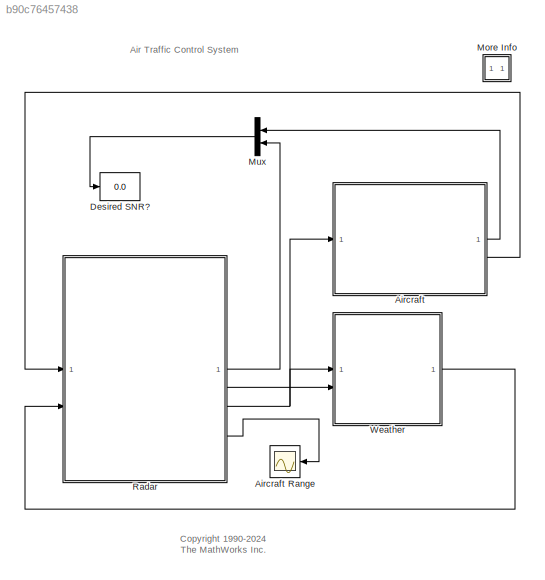
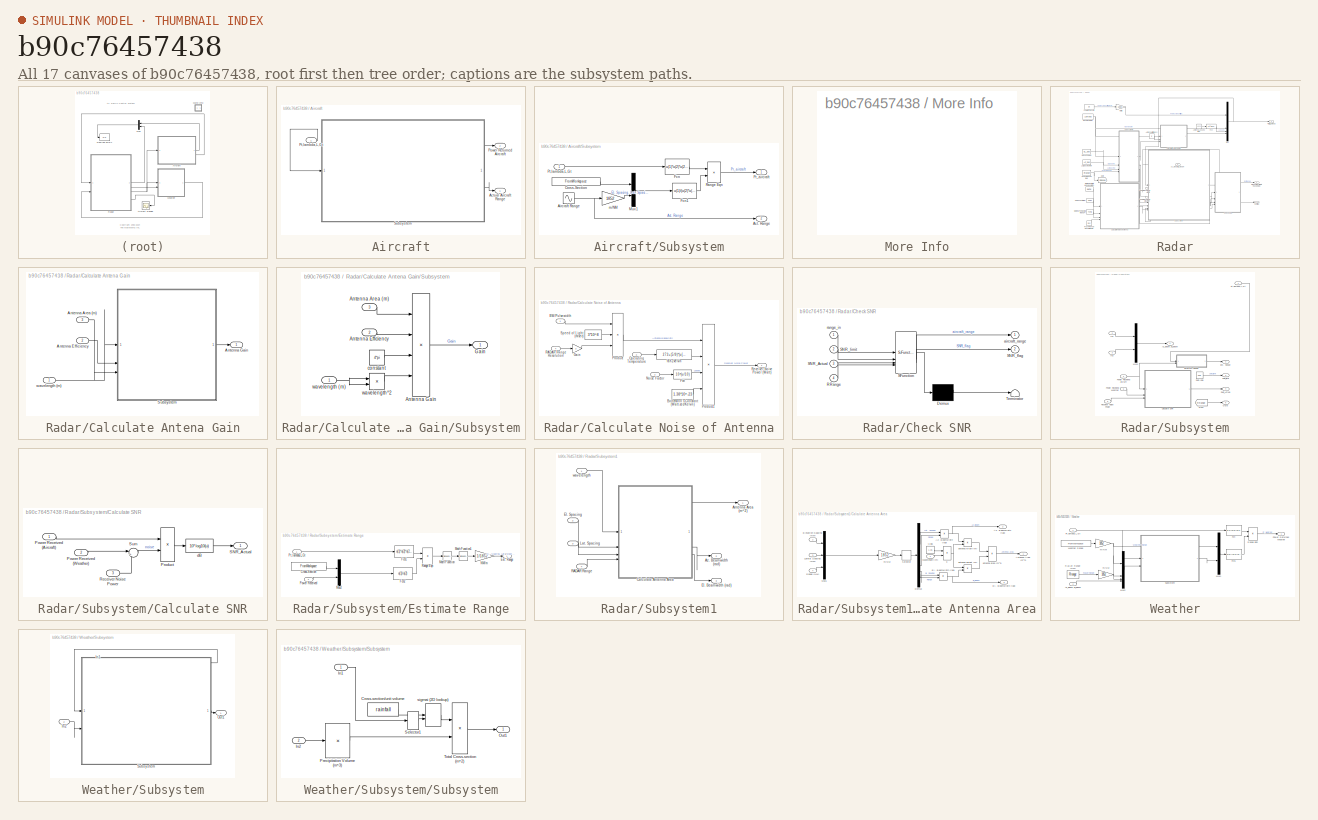
[diagram: thumbnail index - all 17 canvases of the model, root first then tree order]
MODEL slx_b90c76457438
KIND model
CONFIG AbsTol = auto
CONFIG EnableMultiTasking = on
CONFIG FixedStep = auto
CONFIG InitFcn = aero_init_atc
CONFIG MaxStep = 0.25
CONFIG MinStep = auto
CONFIG PreLoadFcn = aero_atcgui;
CONFIG RelTol = 1e-3
CONFIG SampleTimeConstraint = Unconstrained
CONFIG SolverName = ode45
CONFIG StartTime = 0.0
CONFIG StopTime = 10000
BLOCK [SubSystem] Aircraft
BLOCK [Scope] Aircraft Range
  ActiveDisplayYMaximum = 65
  ActiveDisplayYMinimum = 0
  DataLoggingDecimation = 1
  DataLoggingSaveFormat = Structure With Time
  Floating = off
  GraphicalSettings = {"GraphicalSettings":{"LegacySettings":true,"Style":{"AxesScalingProperties":{"ScaleAxesLimitsAtStop":false},"Style":{"AxesColor":"[0 0 0]","BackgroundColor":"[0.156862745098039 0.156862745098039 0.156862745098039]","ColorOrder":"[1 1 0.0666666666666667;0.0745098039215686 0.623529411764706 1;1 0.411764705882353 0.16078431372549;0.392156862745098 0.831372549019608 0.0745098039215686;0.7176470588235...<+612ch>
  MultipleDisplayCache = [{"MaxYLimMag":10,"MaxYLimReal":65,"MinYLimMag":0,"MinYLimReal":0,"PlotAsMagnitudePhase":false,"ShowGrid":true,"ShowLegend":false,"Title":"%<SignalLabel>","YLabel":""}]
  NumInputPorts = 1
  TimeSpan = 10300
  WasSavedAsWebScope = on
  WindowPosition = [109 1026 315 174]
BLOCK [Outport] Aircraft/Actual Aircraft Range
  VectorParamsAs1DForOutWhenUnconnected = off
BLOCK [Outport] Aircraft/Power Returned Aircraft
  Port = 2
  VectorParamsAs1DForOutWhenUnconnected = off
BLOCK [Inport] Aircraft/Pt,lambda,L,Gt
BLOCK [SubSystem] Aircraft/Subsystem
BLOCK [Outport] Aircraft/Subsystem/Act. Range
  Port = 2
BLOCK [Sin] Aircraft/Subsystem/Aircraft Range
  Amplitude = 25
  Bias = 35
  Frequency = 0.0025
  SampleTime = 0
BLOCK [FromWorkspace] Aircraft/Subsystem/Cross-Section
  Interpolate = off
  OutputAfterFinalValue = Holding final value
  VariableName = [T_xsection,U_xsection]
  ZeroCross = off
BLOCK [Fcn] Aircraft/Subsystem/Fcn
  Expr = u(1)*u(2)*u(2)*u(4)*u(4)/(64*pi*pi*pi*u(3))
BLOCK [Fcn] Aircraft/Subsystem/Fcn1
  Expr = u(1)/(u(2)*u(2)*u(2)*u(2))
BLOCK [Mux] Aircraft/Subsystem/Mux1
  DisplayOption = bar
  Inputs = 2
BLOCK [Outport] Aircraft/Subsystem/Pr_aircraft
BLOCK [Inport] Aircraft/Subsystem/Pt,lambda,L,Gt
BLOCK [Product] Aircraft/Subsystem/Range Eqn
  InputSameDT = on
  OutDataTypeStr = Inherit: Same as first input
  RndMeth = Zero
  SaturateOnIntegerOverflow = on
BLOCK [Gain] Aircraft/Subsystem/m//NM
  Gain = 1852
  OutDataTypeStr = Inherit: Same as input
  ParamDataTypeStr = Inherit: Same as input
  SaturateOnIntegerOverflow = on
BLOCK [Display] Desired SNR?
  Decimation = 1
BLOCK [SubSystem] More Info
  OpenFcn = showExample('simulink_aerospace/AirTrafficControlRadarDesignExample')
BLOCK [Mux] Mux
  DisplayOption = bar
  Inputs = 2
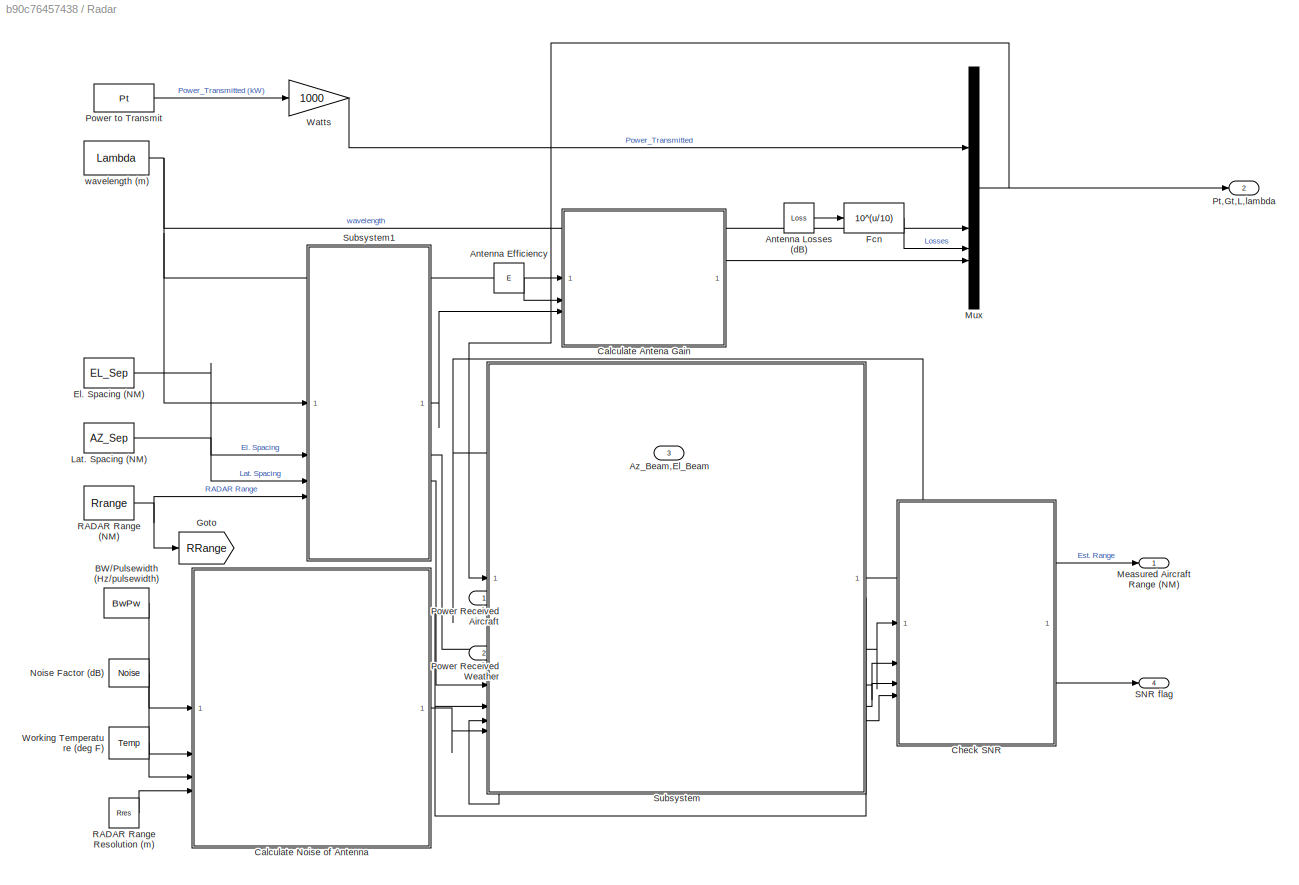
BLOCK [SubSystem] Radar
BLOCK [Constant] Radar/Antenna Efficiency
  Value = E
BLOCK [Constant] Radar/Antenna Losses (dB)
  Value = Loss
BLOCK [Outport] Radar/Az_Beam,El_Beam
  Port = 3
  VectorParamsAs1DForOutWhenUnconnected = off
BLOCK [Constant] Radar/BW//Pulsewidth (Hz//pulsewidth)
  Value = BwPw
BLOCK [SubSystem] Radar/Calculate Antena Gain
BLOCK [Inport] Radar/Calculate Antena Gain/Antenna Area (m)
  Port = 3
BLOCK [Inport] Radar/Calculate Antena Gain/Antenna Efficiency
  Port = 2
BLOCK [Outport] Radar/Calculate Antena Gain/Antenna Gain 
  VectorParamsAs1DForOutWhenUnconnected = off
BLOCK [SubSystem] Radar/Calculate Antena Gain/Subsystem
BLOCK [Inport] Radar/Calculate Antena Gain/Subsystem/Antenna Area (m)
  Port = 3
BLOCK [Inport] Radar/Calculate Antena Gain/Subsystem/Antenna Efficiency
  Port = 2
BLOCK [Product] Radar/Calculate Antena Gain/Subsystem/Antenna Gain
  InputSameDT = on
  Inputs = ***/
  OutDataTypeStr = Inherit: Same as first input
  RndMeth = Zero
  SaturateOnIntegerOverflow = on
BLOCK [Outport] Radar/Calculate Antena Gain/Subsystem/Gain
BLOCK [Constant] Radar/Calculate Antena Gain/Subsystem/constant
  Value = 4*pi
BLOCK [Inport] Radar/Calculate Antena Gain/Subsystem/wavelength (m)
BLOCK [Product] Radar/Calculate Antena Gain/Subsystem/wavelength^2
  InputSameDT = on
  OutDataTypeStr = Inherit: Same as first input
  RndMeth = Zero
  SaturateOnIntegerOverflow = on
BLOCK [Inport] Radar/Calculate Antena Gain/wavelength (m)
BLOCK [SubSystem] Radar/Calculate Noise of Antenna
BLOCK [Inport] Radar/Calculate Noise of Antenna/BW//Pulsewidth
BLOCK [Constant] Radar/Calculate Noise of Antenna/Boltzmann's Constant (Watt-sec//Kelvin)
  Value = 1.38*10^-23
BLOCK [Fcn] Radar/Calculate Noise of Antenna/Fcn
  Expr = 10^(u/10)
BLOCK [Gain] Radar/Calculate Noise of Antenna/Gain
  Gain = 2
  OutDataTypeStr = Inherit: Same as input
  ParamDataTypeStr = Inherit: Same as input
  SaturateOnIntegerOverflow = on
BLOCK [Inport] Radar/Calculate Noise of Antenna/Noise Factor
  Port = 2
BLOCK [Inport] Radar/Calculate Noise of Antenna/Operating Temperature
  Port = 3
BLOCK [Product] Radar/Calculate Noise of Antenna/Product
  InputSameDT = on
  Inputs = **/
  OutDataTypeStr = Inherit: Same as first input
  RndMeth = Zero
  SaturateOnIntegerOverflow = on
BLOCK [Product] Radar/Calculate Noise of Antenna/Product1
  InputSameDT = on
  Inputs = 4
  OutDataTypeStr = Inherit: Same as first input
  RndMeth = Zero
  SaturateOnIntegerOverflow = on
BLOCK [Inport] Radar/Calculate Noise of Antenna/RADAR Range Resolution
  Port = 4
BLOCK [Outport] Radar/Calculate Noise of Antenna/Receiver Noise Power (Watt)
  VectorParamsAs1DForOutWhenUnconnected = off
BLOCK [Constant] Radar/Calculate Noise of Antenna/Speed of Light (m//sec)
  Value = 3*10^8
BLOCK [Fcn] Radar/Calculate Noise of Antenna/fah2kelvin
  Expr = 273+(5/9)*(u[1]-32)
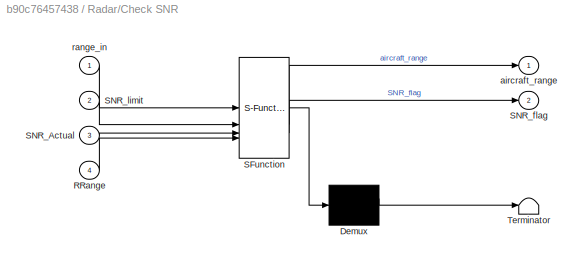
BLOCK [SubSystem] Radar/Check SNR
  ErrorFcn = Stateflow.Translate.translate
  PermitHierarchicalResolution = ExplicitOnly
  SFBlockType = Chart
  TreatAsAtomicUnit = on
BLOCK [Demux] Radar/Check SNR/ Demux 
  Outputs = 1
BLOCK [S-Function] Radar/Check SNR/ SFunction 
  EnableBusSupport = off
  FunctionName = sf_sfun
  PortCounts = [4 3]
  SFcnIsStateOwnerBlock = off
  SFunctionDeploymentMode = off
  Tag = Stateflow S-Function 1
BLOCK [Terminator] Radar/Check SNR/ Terminator 
BLOCK [Inport] Radar/Check SNR/RRange
  Port = 4
BLOCK [Inport] Radar/Check SNR/SNR_Actual
  Port = 3
BLOCK [Outport] Radar/Check SNR/SNR_flag
  Port = 2
  VectorParamsAs1DForOutWhenUnconnected = off
BLOCK [Inport] Radar/Check SNR/SNR_limit
  Port = 2
BLOCK [Outport] Radar/Check SNR/aircraft_range
  VectorParamsAs1DForOutWhenUnconnected = off
BLOCK [Inport] Radar/Check SNR/range_in
BLOCK [Constant] Radar/El. Spacing (NM)
  Value = EL_Sep
BLOCK [Fcn] Radar/Fcn
  Expr = 10^(u/10)
BLOCK [Goto] Radar/Goto
  GotoTag = RRange
BLOCK [Constant] Radar/Lat. Spacing (NM)
  Value = AZ_Sep
BLOCK [Outport] Radar/Measured Aircraft Range (NM)
  VectorParamsAs1DForOutWhenUnconnected = off
BLOCK [Mux] Radar/Mux
  DisplayOption = bar
BLOCK [Constant] Radar/Noise Factor (dB)
  Value = Noise
BLOCK [Inport] Radar/Power Received Aircraft
BLOCK [Inport] Radar/Power Received Weather
  Port = 2
BLOCK [Constant] Radar/Power to Transmit
  Value = Pt
BLOCK [Outport] Radar/Pt,Gt,L,lambda
  Port = 2
  VectorParamsAs1DForOutWhenUnconnected = off
BLOCK [Constant] Radar/RADAR Range (NM)
  Value = Rrange
BLOCK [Constant] Radar/RADAR Range Resolution (m)
  Value = Rres
BLOCK [Outport] Radar/SNR flag
  Port = 4
  VectorParamsAs1DForOutWhenUnconnected = off
BLOCK [SubSystem] Radar/Subsystem
BLOCK [Outport] Radar/Subsystem/Az_Beam,El_Beam
  VectorParamsAs1DForOutWhenUnconnected = off
BLOCK [SubSystem] Radar/Subsystem/Calculate SNR
BLOCK [Inport] Radar/Subsystem/Calculate SNR/Power Received (Aircraft)
BLOCK [Inport] Radar/Subsystem/Calculate SNR/Power Received (Weather)
  Port = 2
BLOCK [Product] Radar/Subsystem/Calculate SNR/Product
  InputSameDT = on
  Inputs = */
  OutDataTypeStr = Inherit: Same as first input
  RndMeth = Zero
  SaturateOnIntegerOverflow = on
BLOCK [Inport] Radar/Subsystem/Calculate SNR/Receiver Noise Power
  Port = 3
BLOCK [Outport] Radar/Subsystem/Calculate SNR/SNR_Actual
  VectorParamsAs1DForOutWhenUnconnected = off
BLOCK [Sum] Radar/Subsystem/Calculate SNR/Sum
  InputSameDT = on
  Inputs = |++
  OutDataTypeStr = Inherit: Same as first input
  SaturateOnIntegerOverflow = on
BLOCK [Fcn] Radar/Subsystem/Calculate SNR/dB
  Expr = 10*log10(u)
BLOCK [Outport] Radar/Subsystem/Est. Range
  Port = 2
BLOCK [SubSystem] Radar/Subsystem/Estimate Range
BLOCK [FromWorkspace] Radar/Subsystem/Estimate Range/Cross-Section
  VariableName = [T_xsection,U_xsection]
  ZeroCross = off
BLOCK [Outport] Radar/Subsystem/Estimate Range/Est. Range
  VectorParamsAs1DForOutWhenUnconnected = off
BLOCK [Fcn] Radar/Subsystem/Estimate Range/Fcn1
  Expr = u(1)*u(2)*u(2)*u(4)*u(4)/(64*pi*pi*pi*u(3))
BLOCK [Fcn] Radar/Subsystem/Estimate Range/Fcn2
  Expr = u(1)/u(2)
BLOCK [Sqrt] Radar/Subsystem/Estimate Range/Math Function
  AlgorithmType = Newton-Raphson
  Operator = signedSqrt
BLOCK [Sqrt] Radar/Subsystem/Estimate Range/Math Function1
  AlgorithmType = Newton-Raphson
  Operator = signedSqrt
BLOCK [Mux] Radar/Subsystem/Estimate Range/Mux2
  DisplayOption = bar
  Inputs = 2
BLOCK [Gain] Radar/Subsystem/Estimate Range/NM//m
  Gain = 1/1852
  OutDataTypeStr = Inherit: Same as input
  ParamDataTypeStr = Inherit: Same as input
  SaturateOnIntegerOverflow = on
BLOCK [Inport] Radar/Subsystem/Estimate Range/Power Received
  Port = 2
BLOCK [Inport] Radar/Subsystem/Estimate Range/Pt,lambda,L,Gt
BLOCK [Product] Radar/Subsystem/Estimate Range/Range Eqn
  InputSameDT = on
  OutDataTypeStr = Inherit: Same as first input
  RndMeth = Zero
  SaturateOnIntegerOverflow = on
BLOCK [From] Radar/Subsystem/From
  GotoTag = RRange
BLOCK [Inport] Radar/Subsystem/In2
  Port = 2
BLOCK [Inport] Radar/Subsystem/In3
  Port = 3
BLOCK [Mux] Radar/Subsystem/Mux1
  DisplayOption = bar
  Inputs = 2
BLOCK [Outport] Radar/Subsystem/Out5
  Port = 5
BLOCK [Inport] Radar/Subsystem/Power Received Aircraft
  Port = 4
BLOCK [Inport] Radar/Subsystem/Power Received Weather
  Port = 5
BLOCK [Inport] Radar/Subsystem/Pt,lambda,L,Gt
BLOCK [Inport] Radar/Subsystem/Receiver Noise Power
  Port = 6
BLOCK [Constant] Radar/Subsystem/SNR (dB)
  Value = SNR
BLOCK [Outport] Radar/Subsystem/SNR_Actual
  Port = 4
BLOCK [Outport] Radar/Subsystem/SNR_limit
  Port = 3
BLOCK [SubSystem] Radar/Subsystem1
BLOCK [Outport] Radar/Subsystem1/Antenna Area (m^2)
BLOCK [Outport] Radar/Subsystem1/Az. Beamwidth (rad) 
  Port = 2
BLOCK [SubSystem] Radar/Subsystem1/Calculate Antenna Area
BLOCK [Constant] Radar/Subsystem1/Calculate Antenna Area/-3 dB  
  NameLocation = top
  Value = 1.25
BLOCK [Outport] Radar/Subsystem1/Calculate Antenna Area/Antenna Area (m^2)
  VectorParamsAs1DForOutWhenUnconnected = off
BLOCK [Product] Radar/Subsystem1/Calculate Antenna Area/Az. Beamwidth (rad)
  InputSameDT = on
  Inputs = */
  NameLocation = top
  OutDataTypeStr = Inherit: Same as first input
  RndMeth = Zero
  SaturateOnIntegerOverflow = on
BLOCK [Outport] Radar/Subsystem1/Calculate Antenna Area/Az. Beamwidth (rad) 
  Port = 2
  VectorParamsAs1DForOutWhenUnconnected = off
BLOCK [Demux] Radar/Subsystem1/Calculate Antenna Area/Demux
  DisplayOption = none
BLOCK [Product] Radar/Subsystem1/Calculate Antenna Area/El. Beamwidth (rad)
  InputSameDT = on
  Inputs = */
  OutDataTypeStr = Inherit: Same as first input
  RndMeth = Zero
  SaturateOnIntegerOverflow = on
BLOCK [Outport] Radar/Subsystem1/Calculate Antenna Area/El. Beamwidth (rad) 
  Port = 3
  VectorParamsAs1DForOutWhenUnconnected = off
BLOCK [Inport] Radar/Subsystem1/Calculate Antenna Area/Elevation Spacing (NM)
  Port = 2
BLOCK [Inport] Radar/Subsystem1/Calculate Antenna Area/Lateral Spacing (NM)
  Port = 3
BLOCK [Mux] Radar/Subsystem1/Calculate Antenna Area/Mux1
  DisplayOption = bar
  Inputs = 3
BLOCK [Inport] Radar/Subsystem1/Calculate Antenna Area/Range (NM)
  Port = 4
BLOCK [Selector] Radar/Subsystem1/Calculate Antenna Area/Selector
  IndexOptions = Index vector (dialog)
  Indices = [1 3 2 3]
  InputPortWidth = 3
  OutputSizes = 1
BLOCK [Inport] Radar/Subsystem1/Calculate Antenna Area/Wavelength (m)
BLOCK [Product] Radar/Subsystem1/Calculate Antenna Area/antenna area (m^2)
  InputSameDT = on
  OutDataTypeStr = Inherit: Same as first input
  RndMeth = Zero
  SaturateOnIntegerOverflow = on
BLOCK [Product] Radar/Subsystem1/Calculate Antenna Area/antenna height (m)
  InputSameDT = on
  Inputs = */
  NameLocation = top
  OutDataTypeStr = Inherit: Same as first input
  RndMeth = Zero
  SaturateOnIntegerOverflow = on
BLOCK [Product] Radar/Subsystem1/Calculate Antenna Area/antenna width (m)
  InputSameDT = on
  Inputs = /*
  OutDataTypeStr = Inherit: Same as first input
  RndMeth = Zero
  SaturateOnIntegerOverflow = on
BLOCK [Product] Radar/Subsystem1/Calculate Antenna Area/k
  InputSameDT = on
  Inputs = **
  OutDataTypeStr = Inherit: Same as first input
  RndMeth = Zero
  SaturateOnIntegerOverflow = on
BLOCK [Gain] Radar/Subsystem1/Calculate Antenna Area/m//NM
  Gain = 1852
  OutDataTypeStr = Inherit: Same as input
  ParamDataTypeStr = Inherit: Same as input
  SaturateOnIntegerOverflow = on
BLOCK [Outport] Radar/Subsystem1/El. Beamwidth (rad) 
  Port = 3
BLOCK [Inport] Radar/Subsystem1/El. Spacing
  Port = 2
BLOCK [Inport] Radar/Subsystem1/Lat. Spacing
  Port = 3
BLOCK [Inport] Radar/Subsystem1/RADAR Range
  Port = 4
BLOCK [Inport] Radar/Subsystem1/wavelength
BLOCK [Gain] Radar/Watts
  Gain = 1000
  OutDataTypeStr = Inherit: Same as input
  ParamDataTypeStr = Inherit: Same as input
  SaturateOnIntegerOverflow = on
BLOCK [Constant] Radar/Working Temperature (deg F)
  Value = Temp
BLOCK [Constant] Radar/wavelength (m) 
  Value = Lambda
BLOCK [SubSystem] Weather
BLOCK [Inport] Weather/Az_Beam,El_Beam
  Port = 2
BLOCK [Fcn] Weather/Fcn
  Expr = u(1)*u(2)*u(2)*u(4)*u(4)/(64*pi*pi*pi)
BLOCK [Fcn] Weather/Fcn1
  Expr = u(2)/(u(1)*u(1)*u(1)*u(1))
BLOCK [Mux] Weather/Mux1
  DisplayOption = bar
  Inputs = 2
BLOCK [Mux] Weather/Mux2
  DisplayOption = bar
BLOCK [Outport] Weather/Power Returned Weather
  VectorParamsAs1DForOutWhenUnconnected = off
BLOCK [Inport] Weather/Pt,lambda,L,Gt
BLOCK [Constant] Weather/RADAR Range (NM)
  NameLocation = top
  Value = Rrange
BLOCK [Product] Weather/Range Eqn
  InputSameDT = on
  OutDataTypeStr = Inherit: Same as first input
  RndMeth = Zero
  SaturateOnIntegerOverflow = on
BLOCK [SubSystem] Weather/Subsystem
BLOCK [Inport] Weather/Subsystem/In1
BLOCK [Inport] Weather/Subsystem/In2
  Port = 2
BLOCK [Outport] Weather/Subsystem/Out1
BLOCK [SubSystem] Weather/Subsystem/Subsystem
BLOCK [Constant] Weather/Subsystem/Subsystem/Cross-section//unit volume
  NameLocation = top
  Value = rainfall
BLOCK [Inport] Weather/Subsystem/Subsystem/In1
BLOCK [Inport] Weather/Subsystem/Subsystem/In2
  Port = 2
BLOCK [Outport] Weather/Subsystem/Subsystem/Out1
BLOCK [Product] Weather/Subsystem/Subsystem/Precipitation Volume (m^3)
  InputSameDT = on
  Inputs = *
  OutDataTypeStr = Inherit: Same as first input
  RndMeth = Zero
  SaturateOnIntegerOverflow = on
BLOCK [Selector] Weather/Subsystem/Subsystem/Selector1
  IndexOptions = Index vector (dialog)
  Indices = 2
  InputPortWidth = 4
  OutputSizes = 1
BLOCK [Product] Weather/Subsystem/Subsystem/Total Cross-section (m^2)
  InputSameDT = on
  OutDataTypeStr = Inherit: Same as first input
  RndMeth = Zero
  SaturateOnIntegerOverflow = on
BLOCK [Lookup_n-D] Weather/Subsystem/Subsystem/sigmai (2D lookup)
  BreakpointsForDimension1 = rainfall_bp
  BreakpointsForDimension2 = lambda_bp
  InputPortMap = u0,u1
  SaturateOnIntegerOverflow = on
  Table = sigma_table
BLOCK [FromWorkspace] Weather/Weather Range
  Interpolate = off
  OutputAfterFinalValue = Holding final value
  VariableName = [T_Weather,R_Weather]
  ZeroCross = off
BLOCK [Gain] Weather/m//NM
  Gain = 1852
  NameLocation = top
  OutDataTypeStr = Inherit: Same as input
  ParamDataTypeStr = Inherit: Same as input
  SaturateOnIntegerOverflow = on
BLOCK [Gain] Weather/m//NM 
  Gain = 1852
  OutDataTypeStr = Inherit: Same as input
  ParamDataTypeStr = Inherit: Same as input
  SaturateOnIntegerOverflow = on
ANNOTATION (root): Air Traffic Control System
ANNOTATION (root): <copyright redacted>
LINE Aircraft/Pt,lambda,L,Gt:1 -> Aircraft/Subsystem:1
NET Aircraft/Subsystem/Aircraft Range:1 -> Aircraft/Subsystem/Act. Range:1, Aircraft/Subsystem/m//NM:1
LINE Aircraft/Subsystem/Cross-Section:1 -> Aircraft/Subsystem/Mux1:1
LINE Aircraft/Subsystem/Fcn1:1 -> Aircraft/Subsystem/Range Eqn:2
LINE Aircraft/Subsystem/Fcn:1 -> Aircraft/Subsystem/Range Eqn:1
LINE Aircraft/Subsystem/Mux1:1 -> Aircraft/Subsystem/Fcn1:1
LINE Aircraft/Subsystem/Pt,lambda,L,Gt:1 -> Aircraft/Subsystem/Fcn:1
LINE Aircraft/Subsystem/Range Eqn:1 -> Aircraft/Subsystem/Pr_aircraft:1
LINE Aircraft/Subsystem/m//NM:1 -> Aircraft/Subsystem/Mux1:2
LINE Aircraft/Subsystem:1 -> Aircraft/Power Returned Aircraft:1
LINE Aircraft/Subsystem:2 -> Aircraft/Actual Aircraft Range:1
LINE Aircraft:1 -> Mux:1
LINE Aircraft:2 -> Radar:1
LINE Mux:1 -> Desired SNR?:1
LINE Radar/Antenna Efficiency:1 -> Radar/Calculate Antena Gain:2
LINE Radar/Antenna Losses (dB):1 -> Radar/Fcn:1
LINE Radar/BW//Pulsewidth (Hz//pulsewidth):1 -> Radar/Calculate Noise of Antenna:1
LINE Radar/Calculate Antena Gain/Antenna Area (m):1 -> Radar/Calculate Antena Gain/Subsystem:3
LINE Radar/Calculate Antena Gain/Antenna Efficiency:1 -> Radar/Calculate Antena Gain/Subsystem:2
LINE Radar/Calculate Antena Gain/Subsystem/Antenna Area (m):1 -> Radar/Calculate Antena Gain/Subsystem/Antenna Gain:1
LINE Radar/Calculate Antena Gain/Subsystem/Antenna Efficiency:1 -> Radar/Calculate Antena Gain/Subsystem/Antenna Gain:2
LINE Radar/Calculate Antena Gain/Subsystem/Antenna Gain:1 -> Radar/Calculate Antena Gain/Subsystem/Gain:1
LINE Radar/Calculate Antena Gain/Subsystem/constant:1 -> Radar/Calculate Antena Gain/Subsystem/Antenna Gain:3
NET Radar/Calculate Antena Gain/Subsystem/wavelength (m):1 -> Radar/Calculate Antena Gain/Subsystem/wavelength^2:1, Radar/Calculate Antena Gain/Subsystem/wavelength^2:2
LINE Radar/Calculate Antena Gain/Subsystem/wavelength^2:1 -> Radar/Calculate Antena Gain/Subsystem/Antenna Gain:4
LINE Radar/Calculate Antena Gain/Subsystem:1 -> Radar/Calculate Antena Gain/Antenna Gain :1
LINE Radar/Calculate Antena Gain/wavelength (m):1 -> Radar/Calculate Antena Gain/Subsystem:1
LINE Radar/Calculate Antena Gain:1 -> Radar/Mux:4
LINE Radar/Calculate Noise of Antenna/BW//Pulsewidth:1 -> Radar/Calculate Noise of Antenna/Product:1
LINE Radar/Calculate Noise of Antenna/Boltzmann's Constant (Watt-sec//Kelvin):1 -> Radar/Calculate Noise of Antenna/Product1:4
LINE Radar/Calculate Noise of Antenna/Fcn:1 -> Radar/Calculate Noise of Antenna/Product1:3
LINE Radar/Calculate Noise of Antenna/Gain:1 -> Radar/Calculate Noise of Antenna/Product:3
LINE Radar/Calculate Noise of Antenna/Noise Factor:1 -> Radar/Calculate Noise of Antenna/Fcn:1
LINE Radar/Calculate Noise of Antenna/Operating Temperature:1 -> Radar/Calculate Noise of Antenna/fah2kelvin:1
LINE Radar/Calculate Noise of Antenna/Product1:1 -> Radar/Calculate Noise of Antenna/Receiver Noise Power (Watt):1
LINE Radar/Calculate Noise of Antenna/Product:1 -> Radar/Calculate Noise of Antenna/Product1:1
LINE Radar/Calculate Noise of Antenna/RADAR Range Resolution:1 -> Radar/Calculate Noise of Antenna/Gain:1
LINE Radar/Calculate Noise of Antenna/Speed of Light (m//sec):1 -> Radar/Calculate Noise of Antenna/Product:2
LINE Radar/Calculate Noise of Antenna/fah2kelvin:1 -> Radar/Calculate Noise of Antenna/Product1:2
LINE Radar/Calculate Noise of Antenna:1 -> Radar/Subsystem:6
LINE Radar/Check SNR:1 -> Radar/Measured Aircraft Range (NM):1
LINE Radar/Check SNR:2 -> Radar/SNR flag:1
LINE Radar/El. Spacing (NM):1 -> Radar/Subsystem1:2
LINE Radar/Fcn:1 -> Radar/Mux:3
LINE Radar/Lat. Spacing (NM):1 -> Radar/Subsystem1:3
NET Radar/Mux:1 -> Radar/Pt,Gt,L,lambda:1, Radar/Subsystem:1
LINE Radar/Noise Factor (dB):1 -> Radar/Calculate Noise of Antenna:2
LINE Radar/Power Received Aircraft:1 -> Radar/Subsystem:4
LINE Radar/Power Received Weather:1 -> Radar/Subsystem:5
LINE Radar/Power to Transmit:1 -> Radar/Watts:1
NET Radar/RADAR Range (NM):1 -> Radar/Goto:1, Radar/Subsystem1:4
LINE Radar/RADAR Range Resolution (m):1 -> Radar/Calculate Noise of Antenna:4
LINE Radar/Subsystem/Calculate SNR/Power Received (Aircraft):1 -> Radar/Subsystem/Calculate SNR/Product:1
LINE Radar/Subsystem/Calculate SNR/Power Received (Weather):1 -> Radar/Subsystem/Calculate SNR/Sum:1
LINE Radar/Subsystem/Calculate SNR/Product:1 -> Radar/Subsystem/Calculate SNR/dB:1
LINE Radar/Subsystem/Calculate SNR/Receiver Noise Power:1 -> Radar/Subsystem/Calculate SNR/Sum:2
LINE Radar/Subsystem/Calculate SNR/Sum:1 -> Radar/Subsystem/Calculate SNR/Product:2
LINE Radar/Subsystem/Calculate SNR/dB:1 -> Radar/Subsystem/Calculate SNR/SNR_Actual:1
LINE Radar/Subsystem/Calculate SNR:1 -> Radar/Subsystem/SNR_Actual:1
LINE Radar/Subsystem/Estimate Range/Cross-Section:1 -> Radar/Subsystem/Estimate Range/Mux2:1
LINE Radar/Subsystem/Estimate Range/Fcn1:1 -> Radar/Subsystem/Estimate Range/Range Eqn:1
LINE Radar/Subsystem/Estimate Range/Fcn2:1 -> Radar/Subsystem/Estimate Range/Range Eqn:2
LINE Radar/Subsystem/Estimate Range/Math Function1:1 -> Radar/Subsystem/Estimate Range/NM//m:1
LINE Radar/Subsystem/Estimate Range/Math Function:1 -> Radar/Subsystem/Estimate Range/Math Function1:1
LINE Radar/Subsystem/Estimate Range/Mux2:1 -> Radar/Subsystem/Estimate Range/Fcn2:1
LINE Radar/Subsystem/Estimate Range/NM//m:1 -> Radar/Subsystem/Estimate Range/Est. Range:1
LINE Radar/Subsystem/Estimate Range/Power Received:1 -> Radar/Subsystem/Estimate Range/Mux2:2
LINE Radar/Subsystem/Estimate Range/Pt,lambda,L,Gt:1 -> Radar/Subsystem/Estimate Range/Fcn1:1
LINE Radar/Subsystem/Estimate Range/Range Eqn:1 -> Radar/Subsystem/Estimate Range/Math Function:1
LINE Radar/Subsystem/Estimate Range:1 -> Radar/Subsystem/Est. Range:1
LINE Radar/Subsystem/From:1 -> Radar/Subsystem/Out5:1
LINE Radar/Subsystem/In2:1 -> Radar/Subsystem/Mux1:1
LINE Radar/Subsystem/In3:1 -> Radar/Subsystem/Mux1:2
LINE Radar/Subsystem/Mux1:1 -> Radar/Subsystem/Az_Beam,El_Beam:1
NET Radar/Subsystem/Power Received Aircraft:1 -> Radar/Subsystem/Calculate SNR:1, Radar/Subsystem/Estimate Range:2
LINE Radar/Subsystem/Power Received Weather:1 -> Radar/Subsystem/Calculate SNR:2
LINE Radar/Subsystem/Pt,lambda,L,Gt:1 -> Radar/Subsystem/Estimate Range:1
LINE Radar/Subsystem/Receiver Noise Power:1 -> Radar/Subsystem/Calculate SNR:3
LINE Radar/Subsystem/SNR (dB):1 -> Radar/Subsystem/SNR_limit:1
LINE Radar/Subsystem1/Calculate Antenna Area/-3 dB  :1 -> Radar/Subsystem1/Calculate Antenna Area/k:1
NET Radar/Subsystem1/Calculate Antenna Area/Az. Beamwidth (rad):1 -> Radar/Subsystem1/Calculate Antenna Area/Az. Beamwidth (rad) :1, Radar/Subsystem1/Calculate Antenna Area/antenna width (m):1
LINE Radar/Subsystem1/Calculate Antenna Area/Demux:1 -> Radar/Subsystem1/Calculate Antenna Area/Az. Beamwidth (rad):1
LINE Radar/Subsystem1/Calculate Antenna Area/Demux:2 -> Radar/Subsystem1/Calculate Antenna Area/Az. Beamwidth (rad):2
LINE Radar/Subsystem1/Calculate Antenna Area/Demux:3 -> Radar/Subsystem1/Calculate Antenna Area/El. Beamwidth (rad):1
LINE Radar/Subsystem1/Calculate Antenna Area/Demux:4 -> Radar/Subsystem1/Calculate Antenna Area/El. Beamwidth (rad):2
NET Radar/Subsystem1/Calculate Antenna Area/El. Beamwidth (rad):1 -> Radar/Subsystem1/Calculate Antenna Area/El. Beamwidth (rad) :1, Radar/Subsystem1/Calculate Antenna Area/antenna height (m):2
LINE Radar/Subsystem1/Calculate Antenna Area/Elevation Spacing (NM):1 -> Radar/Subsystem1/Calculate Antenna Area/Mux1:1
LINE Radar/Subsystem1/Calculate Antenna Area/Lateral Spacing (NM):1 -> Radar/Subsystem1/Calculate Antenna Area/Mux1:2
LINE Radar/Subsystem1/Calculate Antenna Area/Mux1:1 -> Radar/Subsystem1/Calculate Antenna Area/m//NM:1
LINE Radar/Subsystem1/Calculate Antenna Area/Range (NM):1 -> Radar/Subsystem1/Calculate Antenna Area/Mux1:3
LINE Radar/Subsystem1/Calculate Antenna Area/Selector:1 -> Radar/Subsystem1/Calculate Antenna Area/Demux:1
LINE Radar/Subsystem1/Calculate Antenna Area/Wavelength (m):1 -> Radar/Subsystem1/Calculate Antenna Area/k:2
LINE Radar/Subsystem1/Calculate Antenna Area/antenna area (m^2):1 -> Radar/Subsystem1/Calculate Antenna Area/Antenna Area (m^2):1
LINE Radar/Subsystem1/Calculate Antenna Area/antenna height (m):1 -> Radar/Subsystem1/Calculate Antenna Area/antenna area (m^2):2
LINE Radar/Subsystem1/Calculate Antenna Area/antenna width (m):1 -> Radar/Subsystem1/Calculate Antenna Area/antenna area (m^2):1
NET Radar/Subsystem1/Calculate Antenna Area/k:1 -> Radar/Subsystem1/Calculate Antenna Area/antenna height (m):1, Radar/Subsystem1/Calculate Antenna Area/antenna width (m):2
LINE Radar/Subsystem1/Calculate Antenna Area/m//NM:1 -> Radar/Subsystem1/Calculate Antenna Area/Selector:1
LINE Radar/Subsystem1/Calculate Antenna Area:1 -> Radar/Subsystem1/Antenna Area (m^2):1
LINE Radar/Subsystem1/Calculate Antenna Area:2 -> Radar/Subsystem1/Az. Beamwidth (rad) :1
LINE Radar/Subsystem1/Calculate Antenna Area:3 -> Radar/Subsystem1/El. Beamwidth (rad) :1
LINE Radar/Subsystem1/El. Spacing:1 -> Radar/Subsystem1/Calculate Antenna Area:2
LINE Radar/Subsystem1/Lat. Spacing:1 -> Radar/Subsystem1/Calculate Antenna Area:3
LINE Radar/Subsystem1/RADAR Range:1 -> Radar/Subsystem1/Calculate Antenna Area:4
LINE Radar/Subsystem1/wavelength:1 -> Radar/Subsystem1/Calculate Antenna Area:1
LINE Radar/Subsystem1:1 -> Radar/Calculate Antena Gain:3
LINE Radar/Subsystem1:2 -> Radar/Subsystem:2
LINE Radar/Subsystem1:3 -> Radar/Subsystem:3
LINE Radar/Subsystem:1 -> Radar/Az_Beam,El_Beam:1
LINE Radar/Subsystem:2 -> Radar/Check SNR:1
LINE Radar/Subsystem:3 -> Radar/Check SNR:2
LINE Radar/Subsystem:4 -> Radar/Check SNR:3
LINE Radar/Subsystem:5 -> Radar/Check SNR:4
LINE Radar/Watts:1 -> Radar/Mux:1
LINE Radar/Working Temperature (deg F):1 -> Radar/Calculate Noise of Antenna:3
NET Radar/wavelength (m) :1 -> Radar/Calculate Antena Gain:1, Radar/Mux:2, Radar/Subsystem1:1
LINE Radar:1 -> Mux:2
NET Radar:2 -> Aircraft:1, Weather:1
LINE Radar:3 -> Weather:2
LINE Radar:4 -> Aircraft Range:1
LINE Weather/Az_Beam,El_Beam:1 -> Weather/Mux2:4
LINE Weather/Fcn1:1 -> Weather/Range Eqn:2
LINE Weather/Fcn:1 -> Weather/Range Eqn:1
LINE Weather/Mux1:1 -> Weather/Fcn1:1
LINE Weather/Mux2:1 -> Weather/Subsystem:2
NET Weather/Pt,lambda,L,Gt:1 -> Weather/Fcn:1, Weather/Subsystem:1
LINE Weather/RADAR Range (NM):1 -> Weather/m//NM:1
LINE Weather/Range Eqn:1 -> Weather/Power Returned Weather:1
LINE Weather/Subsystem/In1:1 -> Weather/Subsystem/Subsystem:1
LINE Weather/Subsystem/In2:1 -> Weather/Subsystem/Subsystem:2
LINE Weather/Subsystem/Subsystem/Cross-section//unit volume:1 -> Weather/Subsystem/Subsystem/sigmai (2D lookup):1
LINE Weather/Subsystem/Subsystem/In1:1 -> Weather/Subsystem/Subsystem/Selector1:1
LINE Weather/Subsystem/Subsystem/In2:1 -> Weather/Subsystem/Subsystem/Precipitation Volume (m^3):1
LINE Weather/Subsystem/Subsystem/Precipitation Volume (m^3):1 -> Weather/Subsystem/Subsystem/Total Cross-section (m^2):2
LINE Weather/Subsystem/Subsystem/Selector1:1 -> Weather/Subsystem/Subsystem/sigmai (2D lookup):2
LINE Weather/Subsystem/Subsystem/Total Cross-section (m^2):1 -> Weather/Subsystem/Subsystem/Out1:1
LINE Weather/Subsystem/Subsystem/sigmai (2D lookup):1 -> Weather/Subsystem/Subsystem/Total Cross-section (m^2):1
LINE Weather/Subsystem/Subsystem:1 -> Weather/Subsystem/Out1:1
LINE Weather/Subsystem:1 -> Weather/Mux1:2
LINE Weather/Weather Range:1 -> Weather/m//NM :1
NET Weather/m//NM :1 -> Weather/Mux1:1, Weather/Mux2:1, Weather/Mux2:2
LINE Weather/m//NM:1 -> Weather/Mux2:3
LINE Weather:1 -> Radar:2
note: NET lines group one-source signal fan-out (src -> all destinations, sorted); 1:1 wires keep LINE
CHART Radar/Check SNR states=7 transitions=10
  STATE_LABEL 'Visibility'
  STATE_LABEL '?'
  STATE_LABEL 'detect\nduring: aircraft_range = range_in;'
  STATE_LABEL 'no_detect\nduring: aircraft_range =0;'
  STATE_LABEL '[(SNR_Actual > 6) && (range_in <= RRange)]\n{ aircraft_range = range_in;}'
  STATE_LABEL '[(SNR_Actual <= 6) || (range_in > RRange)]\n{ aircraft_range = 0;}'
  STATE_LABEL '[(SNR_Actual <= 6) || (range_in > RRange)]\n{ aircraft_range =0;}'
  STATE_LABEL '%(SNR_Actual > 6) && (range_in <= RRange) \n{ aircraft_range = range_in;}'
  STATE_LABEL '?'
  STATE_LABEL 'detect\nduring: aircraft_range = range_in;'
  STATE_LABEL 'no_detect\nduring: aircraft_range =0;'
  STATE_LABEL '[(SNR_Actual > 6) && (range_in <= RRange)]\n{ aircraft_range = range_in;}'
  STATE_LABEL '[(SNR_Actual <= 6) || (range_in > RRange)]\n{ aircraft_range = 0;}'
  STATE_LABEL 'detect\nduring: aircraft_range = range_in;'
  STATE_LABEL 'no_detect\nduring: aircraft_range =0;'
  STATE_LABEL 'SNR'
  STATE_LABEL 'Less_than'
  STATE_LABEL 'Equal_to_or_Greater_than'
  STATE_LABEL '%SNR_Actual < SNR_limit\n{SNR_flag = 0;}'
  STATE_LABEL '[SNR_Actual >= SNR_limit]{SNR_flag = 1;}'
  STATE_LABEL '[SNR_Actual >= SNR_limit]{SNR_flag = 1;}'
  STATE_LABEL '[SNR_Actual < SNR_limit]{SNR_flag = 0;}'
  STATE_LABEL 'Less_than'
  STATE_LABEL 'Equal_to_or_Greater_than'
CHART  states=0 transitions=0
